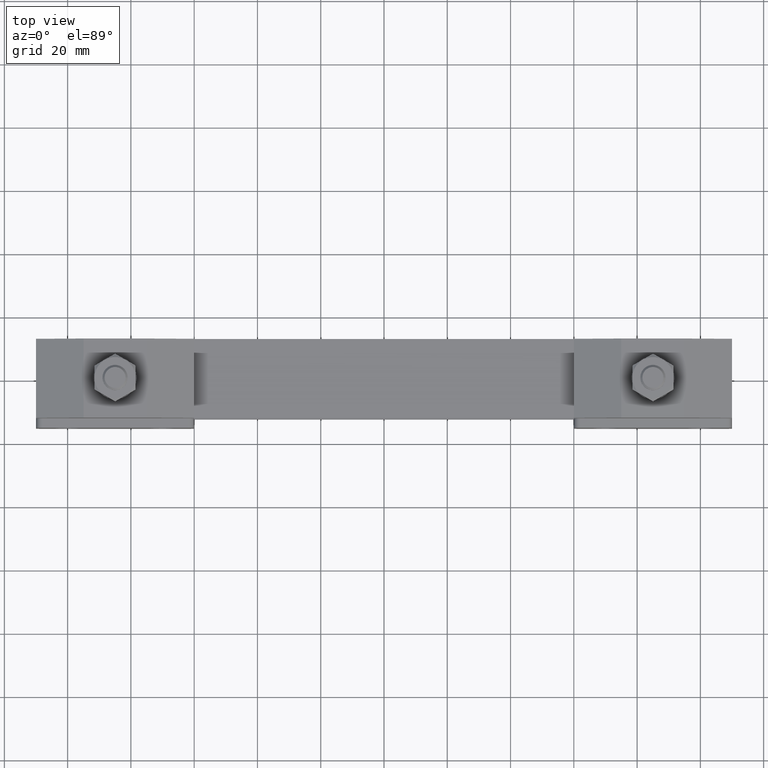
[diagram: clean part render]
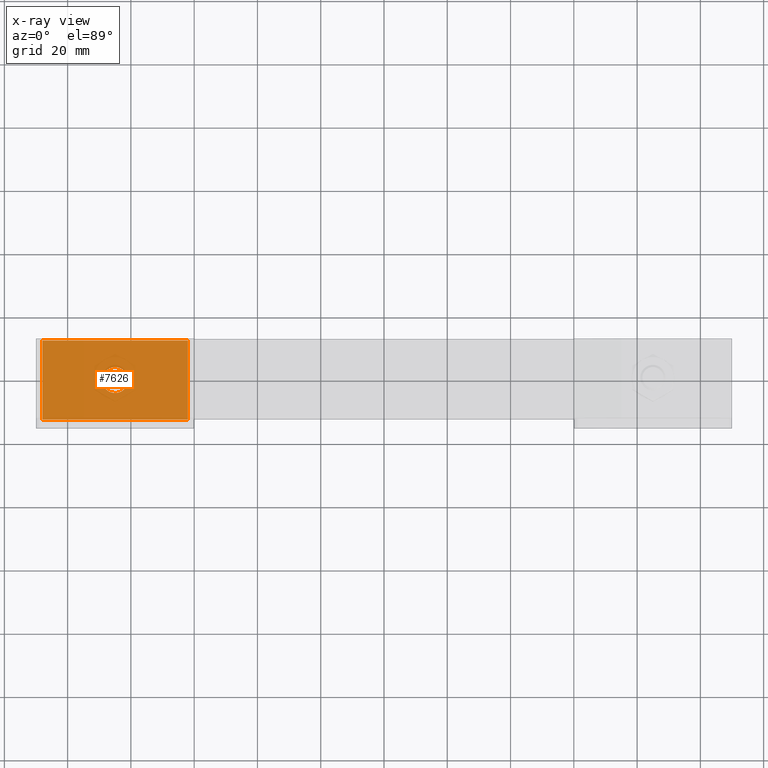
[diagram: x-ray — body ghosted, one internal face saturated and labeled with its STEP entity id]
A machine part, top view, then the same camera in x-ray: the body is ghosted and one INTERNAL B-rep face — a face not visible from any outside direction — is saturated and labeled: STEP entity #7626.
In plain terms, the highlighted planar face has unit normal (0, -0, 1).
Its self-contained STEP definition (entity closure, byte-faithful):
#340 = EDGE_CURVE ( 'NONE', #16277, #15799, #9262, .T. ) ;
#405 = EDGE_CURVE ( 'NONE', #20639, #4757, #7984, .T. ) ;
#448 = CARTESIAN_POINT ( 'NONE',  ( -110.0000000000000000, -12.50000000000036200, -3.500000000000000000 ) ) ;
#2266 = DIRECTION ( 'NONE',  ( 9.214851104388829300E-015, 1.000000000000000000, 0.0000000000000000000 ) ) ;
#2557 = CARTESIAN_POINT ( 'NONE',  ( -62.00000000000000000, 12.50000000000034100, -3.500000000000000000 ) ) ;
#2956 = PLANE ( 'NONE',  #10748 ) ;
#2991 = VECTOR ( 'NONE', #13884, 1000.000000000000000 ) ;
#2992 = LINE ( 'NONE', #18642, #8802 ) ;
#3720 = CARTESIAN_POINT ( 'NONE',  ( -108.0000000000000000, -12.50000000000034100, -3.500000000000000000 ) ) ;
#4012 = EDGE_CURVE ( 'NONE', #15696, #16277, #21363, .T. ) ;
#4048 = CARTESIAN_POINT ( 'NONE',  ( -89.10000000000000900, -3.730067244114486000E-014, -3.500000000000000000 ) ) ;
#4757 = VERTEX_POINT ( 'NONE', #4048 ) ;
#5221 = ORIENTED_EDGE ( 'NONE', *, *, #4012, .T. ) ;
#5725 = CARTESIAN_POINT ( 'NONE',  ( -80.90000000000000600, 3.775900142719316300E-014, -3.500000000000000000 ) ) ;
#5841 = ORIENTED_EDGE ( 'NONE', *, *, #340, .T. ) ;
#6336 = DIRECTION ( 'NONE',  ( 0.0000000000000000000, -0.0000000000000000000, 1.000000000000000000 ) ) ;
#6961 = CARTESIAN_POINT ( 'NONE',  ( -85.00000000000000000, -2.188810080108705000E-017, -3.500000000000000000 ) ) ;
#7178 = DIRECTION ( 'NONE',  ( 1.000000000000000000, 9.214851104388826100E-015, 0.0000000000000000000 ) ) ;
#7450 = VECTOR ( 'NONE', #19082, 1000.000000000000000 ) ;
#7626 = ADVANCED_FACE ( 'NONE', ( #16340, #21433 ), #2956, .T. ) ;
#7937 = VECTOR ( 'NONE', #2266, 1000.000000000000000 ) ;
#7984 = CIRCLE ( 'NONE', #10639, 4.100000000000006800 ) ;
#8510 = DIRECTION ( 'NONE',  ( -1.000000000000000000, -9.214851104388840300E-015, 0.0000000000000000000 ) ) ;
#8736 = AXIS2_PLACEMENT_3D ( 'NONE', #6961, #17260, #7178 ) ;
#8802 = VECTOR ( 'NONE', #8510, 1000.000000000000000 ) ;
#9262 = LINE ( 'NONE', #448, #7450 ) ;
#9368 = DIRECTION ( 'NONE',  ( 0.0000000000000000000, 0.0000000000000000000, 1.000000000000000000 ) ) ;
#9819 = ORIENTED_EDGE ( 'NONE', *, *, #17147, .F. ) ;
#10639 = AXIS2_PLACEMENT_3D ( 'NONE', #17786, #9368, #16357 ) ;
#10748 = AXIS2_PLACEMENT_3D ( 'NONE', #18281, #6336, #11536 ) ;
#11536 = DIRECTION ( 'NONE',  ( 1.000000000000000000, 9.214851104388840300E-015, 0.0000000000000000000 ) ) ;
#11858 = EDGE_CURVE ( 'NONE', #15799, #19427, #12447, .T. ) ;
#12052 = CARTESIAN_POINT ( 'NONE',  ( -108.0000000000000000, -12.50000000000034100, -3.500000000000000000 ) ) ;
#12207 = EDGE_CURVE ( 'NONE', #19427, #15696, #2992, .T. ) ;
#12447 = LINE ( 'NONE', #2557, #7937 ) ;
#13884 = DIRECTION ( 'NONE',  ( -9.214851104388829300E-015, -1.000000000000000000, 0.0000000000000000000 ) ) ;
#15696 = VERTEX_POINT ( 'NONE', #17205 ) ;
#15799 = VERTEX_POINT ( 'NONE', #21077 ) ;
#15881 = CIRCLE ( 'NONE', #8736, 4.100000000000006800 ) ;
#16240 = EDGE_LOOP ( 'NONE', ( #5841, #19803, #21651, #5221 ) ) ;
#16277 = VERTEX_POINT ( 'NONE', #3720 ) ;
#16340 = FACE_BOUND ( 'NONE', #20874, .T. ) ;
#16357 = DIRECTION ( 'NONE',  ( 1.000000000000000000, 9.214851104388826100E-015, 0.0000000000000000000 ) ) ;
#17147 = EDGE_CURVE ( 'NONE', #4757, #20639, #15881, .T. ) ;
#17205 = CARTESIAN_POINT ( 'NONE',  ( -108.0000000000000000, 12.50000000000000000, -3.500000000000000000 ) ) ;
#17260 = DIRECTION ( 'NONE',  ( 0.0000000000000000000, 0.0000000000000000000, 1.000000000000000000 ) ) ;
#17782 = ORIENTED_EDGE ( 'NONE', *, *, #405, .F. ) ;
#17786 = CARTESIAN_POINT ( 'NONE',  ( -85.00000000000000000, -2.188810080108705000E-017, -3.500000000000000000 ) ) ;
#18281 = CARTESIAN_POINT ( 'NONE',  ( -110.0000000000000000, -12.50000000000036200, -3.500000000000000000 ) ) ;
#18642 = CARTESIAN_POINT ( 'NONE',  ( -110.0000000000000000, 12.49999999999987900, -3.500000000000000000 ) ) ;
#19082 = DIRECTION ( 'NONE',  ( 1.000000000000000000, 9.214851104388840300E-015, 0.0000000000000000000 ) ) ;
#19427 = VERTEX_POINT ( 'NONE', #21826 ) ;
#19803 = ORIENTED_EDGE ( 'NONE', *, *, #11858, .T. ) ;
#20639 = VERTEX_POINT ( 'NONE', #5725 ) ;
#20874 = EDGE_LOOP ( 'NONE', ( #17782, #9819 ) ) ;
#21077 = CARTESIAN_POINT ( 'NONE',  ( -62.00000000000000000, -12.50000000000000000, -3.500000000000000000 ) ) ;
#21363 = LINE ( 'NONE', #12052, #2991 ) ;
#21433 = FACE_OUTER_BOUND ( 'NONE', #16240, .T. ) ;
#21651 = ORIENTED_EDGE ( 'NONE', *, *, #12207, .T. ) ;
#21826 = CARTESIAN_POINT ( 'NONE',  ( -62.00000000000000000, 12.50000000000034100, -3.500000000000000000 ) ) ;